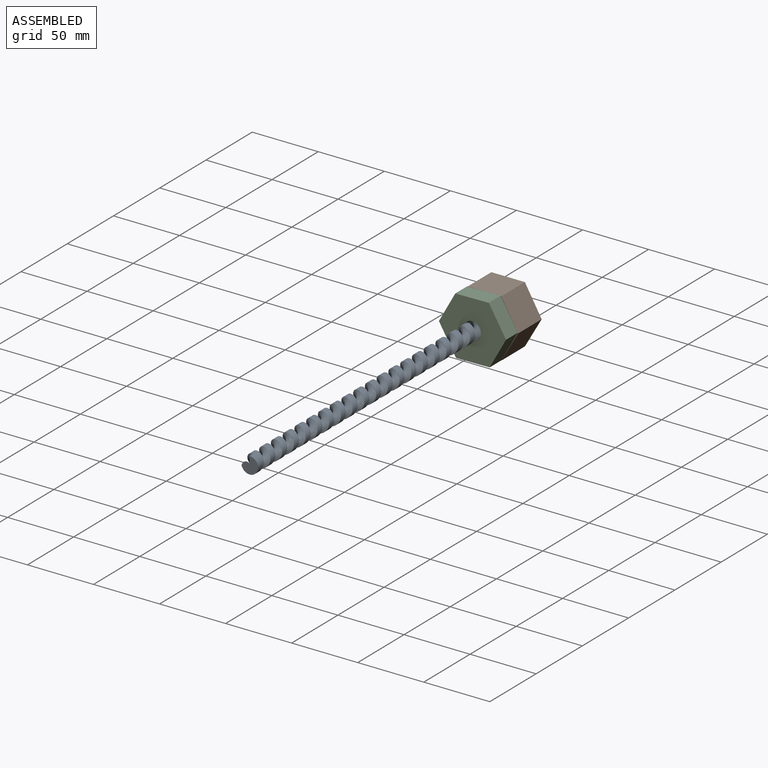
[diagram: assembled view]
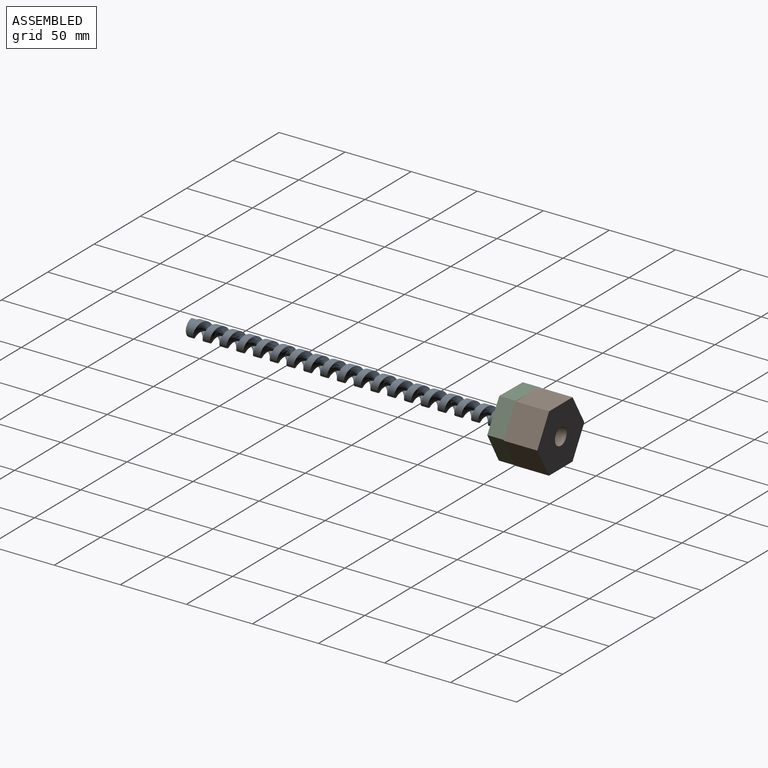
[diagram: assembled view, second angle]
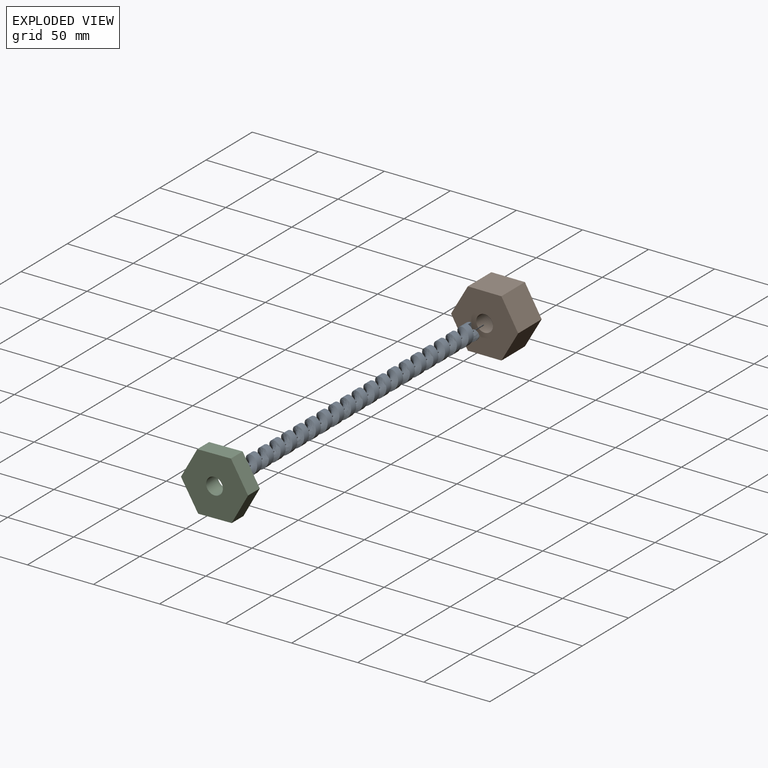
[diagram: exploded view]
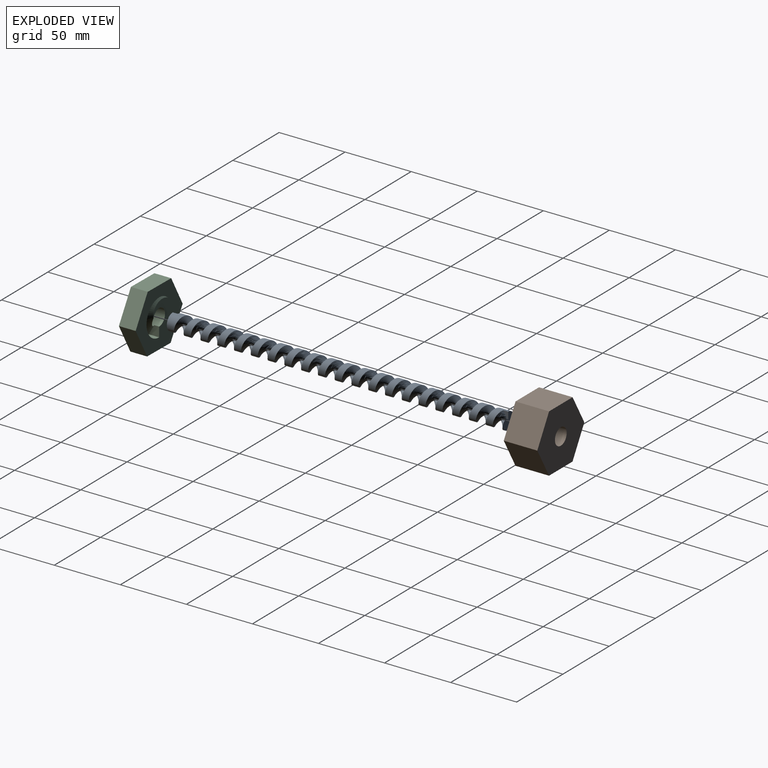
[diagram: exploded view, second angle]
ASSEMBLY  parts=3 mates=2
PART A: 7 faces, bbox 22x264x22 mm
  f0: cylinder r=6.35mm len=254mm, axis (0,1,0), area 4163.3mm2, adj f1,f2,f3,f4,f5,f6
  f1: plane 12.7x12.51mm, normal (0,1,0), area 102.3mm2, adj f0,f4,f6
  f2: plane 12.7x12.51mm, normal (0,-1,0), area 102.3mm2, adj f0,f3,f5
  f3: plane 6.35x3.67mm, normal (-1,0,0), area 11.6mm2, adj f0,f2,f6
  f4: plane 6.35x3.67mm, normal (1,0,0), area 11.6mm2, adj f0,f1,f5
  f5: bspline ~260.35x22mm, area 3446.6mm2, adj f0,f2,f4,f6
  f6: bspline ~257.67x12.69mm, area 3436.3mm2, adj f0,f1,f3,f5
PART B: 9 faces, bbox 50.8x25.4x44 mm
  f0: plane 25.4x22mm, normal (0.87,0,0.5), area 645.2mm2, adj f1,f6,f7,f8
  f1: plane 25.4x25.4mm, normal (0,0,1), area 645.2mm2, adj f0,f2,f7,f8
  f2: plane 25.4x22mm, normal (-0.87,0,0.5), area 645.2mm2, adj f1,f3,f7,f8
  f3: plane 25.4x22mm, normal (-0.87,0,-0.5), area 645.2mm2, adj f2,f4,f7,f8
  f4: plane 25.4x25.4mm, normal (0,0,-1), area 645.2mm2, adj f3,f6,f7,f8
  f5: cylinder r=6.35mm len=25.4mm, axis (0,1,0), area 1013.4mm2, adj f7,f8
  f6: plane 25.4x22mm, normal (0.87,0,-0.5), area 645.2mm2, adj f0,f4,f7,f8
  f7: plane 50.8x43.99mm, normal (0,-1,0), area 1549.5mm2, adj f0,f1,f2,f3,f4,f5,f6
  f8: plane 50.8x43.99mm, normal (0,1,0), area 1549.5mm2, adj f0,f1,f2,f3,f4,f5,f6
PART C: 13 faces, bbox 51.3x21.2x44.9 mm
  f0: plane 22.17x12.7mm, normal (0.87,0,-0.49), area 322.6mm2, adj f1,f5,f7,f8
  f1: plane 21.82x13.01mm, normal (0.86,0,0.51), area 322.6mm2, adj f0,f2,f7,f8
  f2: plane 25.4x12.7mm, normal (-0.01,0,1), area 322.6mm2, adj f1,f3,f7,f8
  f3: plane 22.17x12.7mm, normal (-0.87,0,0.49), area 322.6mm2, adj f2,f4,f7,f8
  f4: plane 21.82x13.01mm, normal (-0.86,0,-0.51), area 322.6mm2, adj f3,f5,f7,f8
  f5: plane 25.4x12.7mm, normal (0.01,0,-1), area 322.6mm2, adj f0,f4,f7,f8
  f6: cylinder r=6.35mm len=12.7mm, axis (0,1,0), area 485.6mm2, adj f7,f8,f10,f12
  f7: plane 50.8x44.35mm, normal (0,-1,0), area 1549.5mm2, adj f0,f1,f2,f3,f4,f5,f6
  f8: plane 51.31x44.86mm, normal (0,1,0), area 1330.6mm2, adj f0,f1,f2,f3,f4,f5,f6,f9
  f9: cylinder r=13.67mm len=27.35mm, axis (0,-1,0), area 210.7mm2, adj f8,f11,f12
  f10: bspline ~22x18.78mm, area 120.4mm2, adj f6,f8,f11,f12
  f11: bspline ~27.34x23.12mm, area 136.1mm2, adj f8,f9,f10,f12
  f12: plane 7.89x7.32mm, normal (-1,0,0), area 42.3mm2, adj f6,f8,f9,f10,f11
PLACE A t=(-38.32,-43.85,-13.53)mm
PLACE B t=(-38.32,-18.45,-13.53)mm
PLACE C rot(axis=(0,1,0),180deg) t=(-38.64,210.15,-13.53)mm
MATE pin_slot A.f0 <-> B.f5  axis (0,1,0) through (-38.32,-43.85,-13.53)mm
MATE parallel C.f8 <-> B.f7  axis (0,1,0) through (-38.32,-43.85,-35.53)mm
